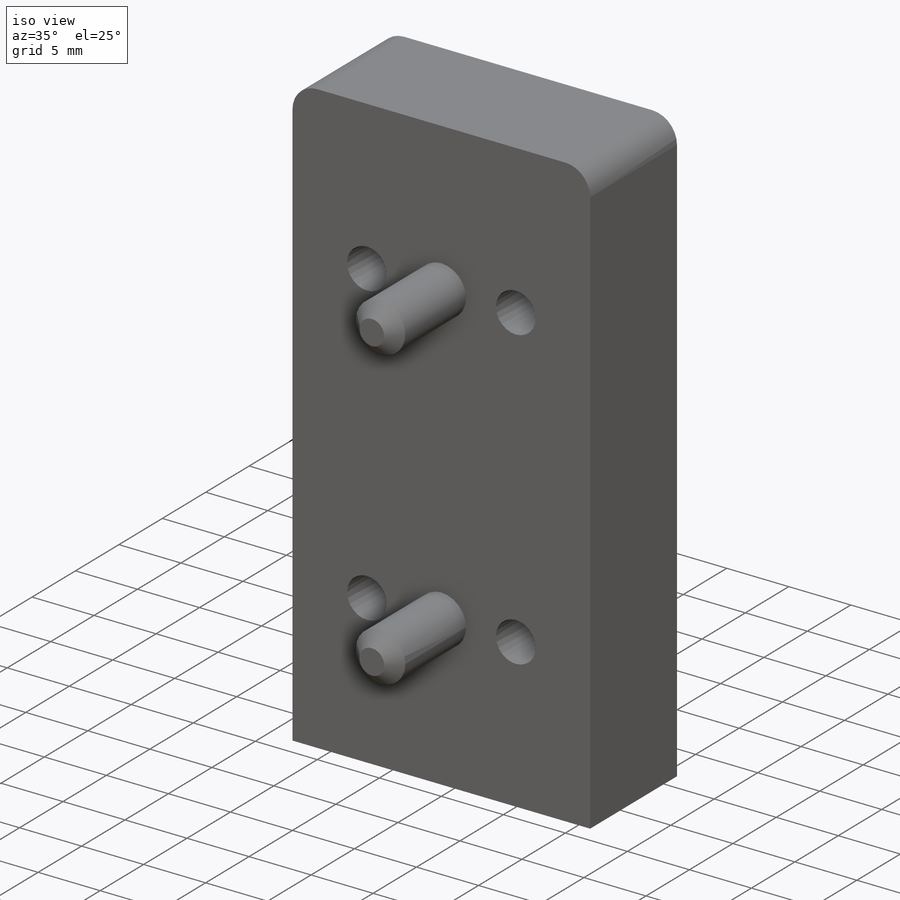
[diagram: iso view]
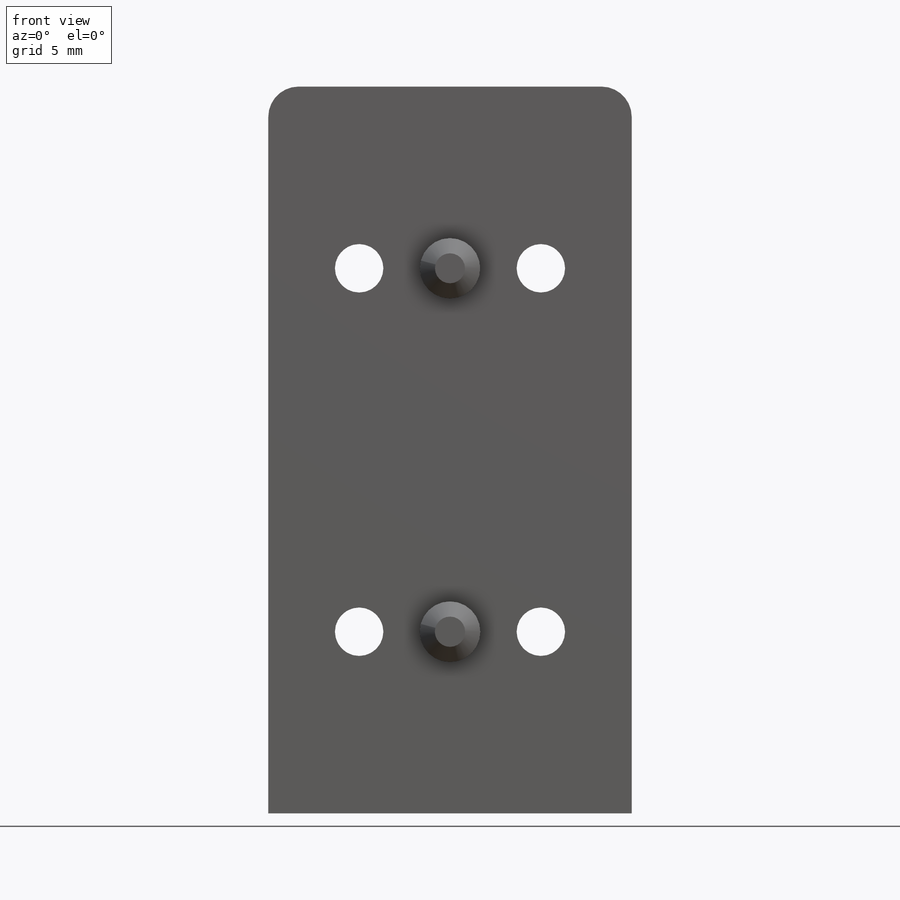
[diagram: front view]
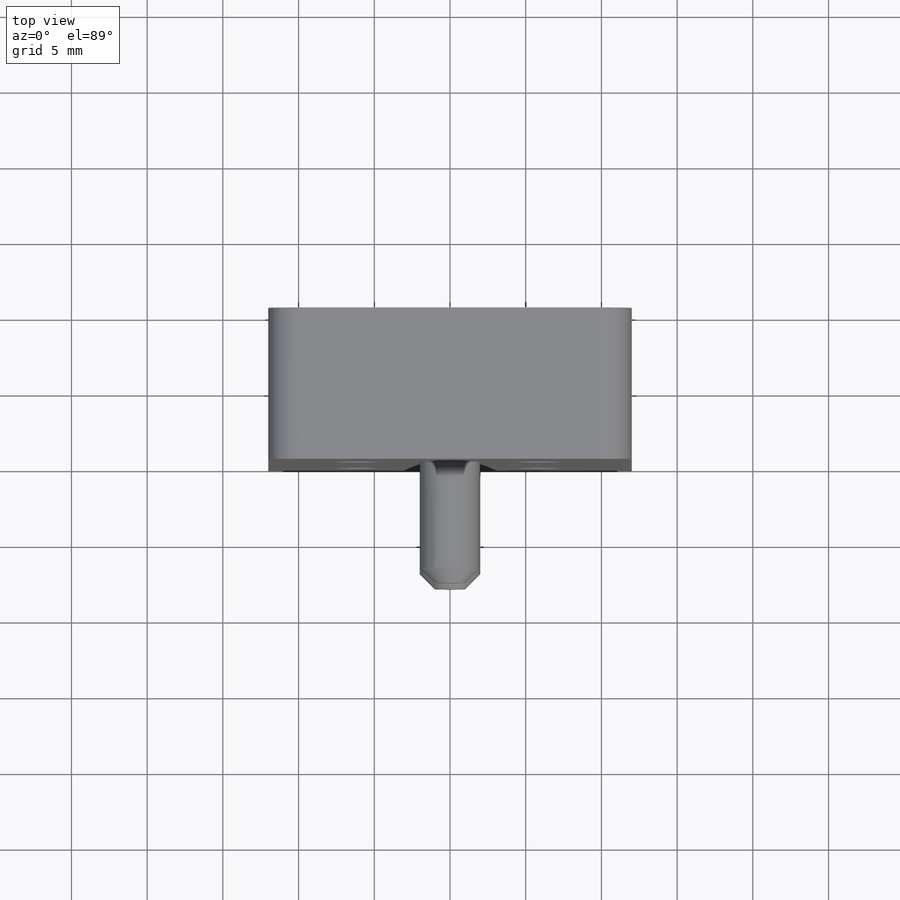
[diagram: top view]
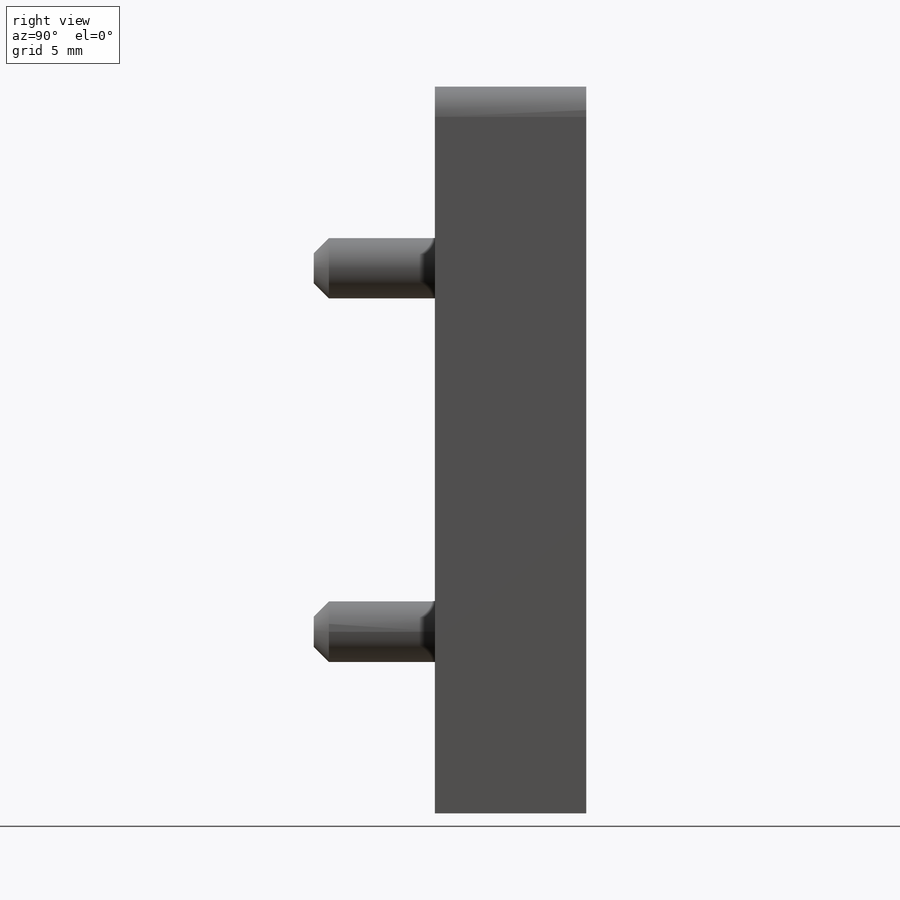
[diagram: right view]
SOLIDWORKS PART (.sldprt)
format: sldprt  version: not decoded by parser v0  size: 494,592 bytes
history: native  units: mm
features: sketch x8, thread x8, plane x3, extrude x2, hole x2, material x1, cut_extrude x1, chamfer x1 (+10 scaffold rows collapsed)
feature tree (36):
  scaffold x10  (default folders/planes/origin — collapsed)
  material  "6061 Сплав"
  plane  "Спереди"
  plane  "Сверху"
  plane  "Справа"
  sketch  "Sketch1"  dims[D1=48.0mm]
  extrude  "Boss-Extrude1"  Depth=10mm
  sketch  "Sketch2"  dims[c1.D11=~0.842301mm c1.D24=0.5mm c1.D1=9.0mm c1.D2=8.0mm c1.D3=6.5mm c1.D4=7.5mm c1.D5=8.0mm c1.D6=9.0mm c1.D7=6.5mm c1.D8=7.5mm c1.D9=3.5mm c1.D10=8.0mm c2.D11=3.0mm c2.D12=3.0mm c2.D13=7.116mm c2.D14=6.884mm c2.D15=9.025mm c2.D16=7.973mm c2.D17=6.884mm c2.D18=7.116mm c2.D19=7.973mm c2.D20=9.027mm c2.D21=7.0mm c2.D22=4.52mm c2.D23=4.52mm c2.D25=9.027mm]
  cut_extrude  "Cut-Extrude1"  Depth=0.6mm
  sketch  "Sketch3"  dims[D1=~3.744246mm]
  extrude  "Boss-Extrude3"  Depth=8mm
  sketch  "Sketch6"
  chamfer  "Chamfer3"  Distance=1mm Angle=45deg
  hole  "Зенковка для  винта с полупотайной головкой M31"  [1 undecoded]
  sketch  "Sketch11"
  sketch  "Sketch12"  dims[hole-wizard template sketch: 54 standard entries collapsed; hole parameters kept: c17.Диаметр сквозного отверстия=3.2mm c17.Глубина сквозного отверстия=18.0mm c17.Диаметр передней зенковки=6.3mm c17.D4=~3.666174mm c17.Угол передней зенковки=90.0deg]
  hole  "Отверстие обработанное метчиком M3x0.51"  [1 undecoded]
  sketch  "Эскиз2"
  thread  "Отверстие резьбы6"  Diameter=5mm  [1 undecoded]
  thread  "Отверстие резьбы7"  Diameter=5mm  [1 undecoded]
  thread  "Отверстие резьбы8"  Diameter=5mm  [1 undecoded]
  thread  "Отверстие резьбы9"  Diameter=5mm  [1 undecoded]
  thread  "Отверстие резьбы10"  Diameter=5mm  [1 undecoded]
  thread  "Отверстие резьбы11"  Diameter=5mm  [1 undecoded]
  thread  "Отверстие резьбы12"  Diameter=5mm  [1 undecoded]
  thread  "Отверстие резьбы13"  Diameter=5mm  [1 undecoded]
  sketch  "Эскиз1"  dims[hole-wizard template sketch: 47 standard entries collapsed; hole parameters kept: c15.Глубина сверла=6.5mm c15.D3=~14.816244mm c15.Угол заточки сверла=118.0deg]
decode coverage: 17 of 22 modeling features carry decoded parameters
note: ~ marks probable driven/reference dimensions
note: 10 parameter values undecoded
note: suppression state not decoded; provenance and decode notes live in map.json
